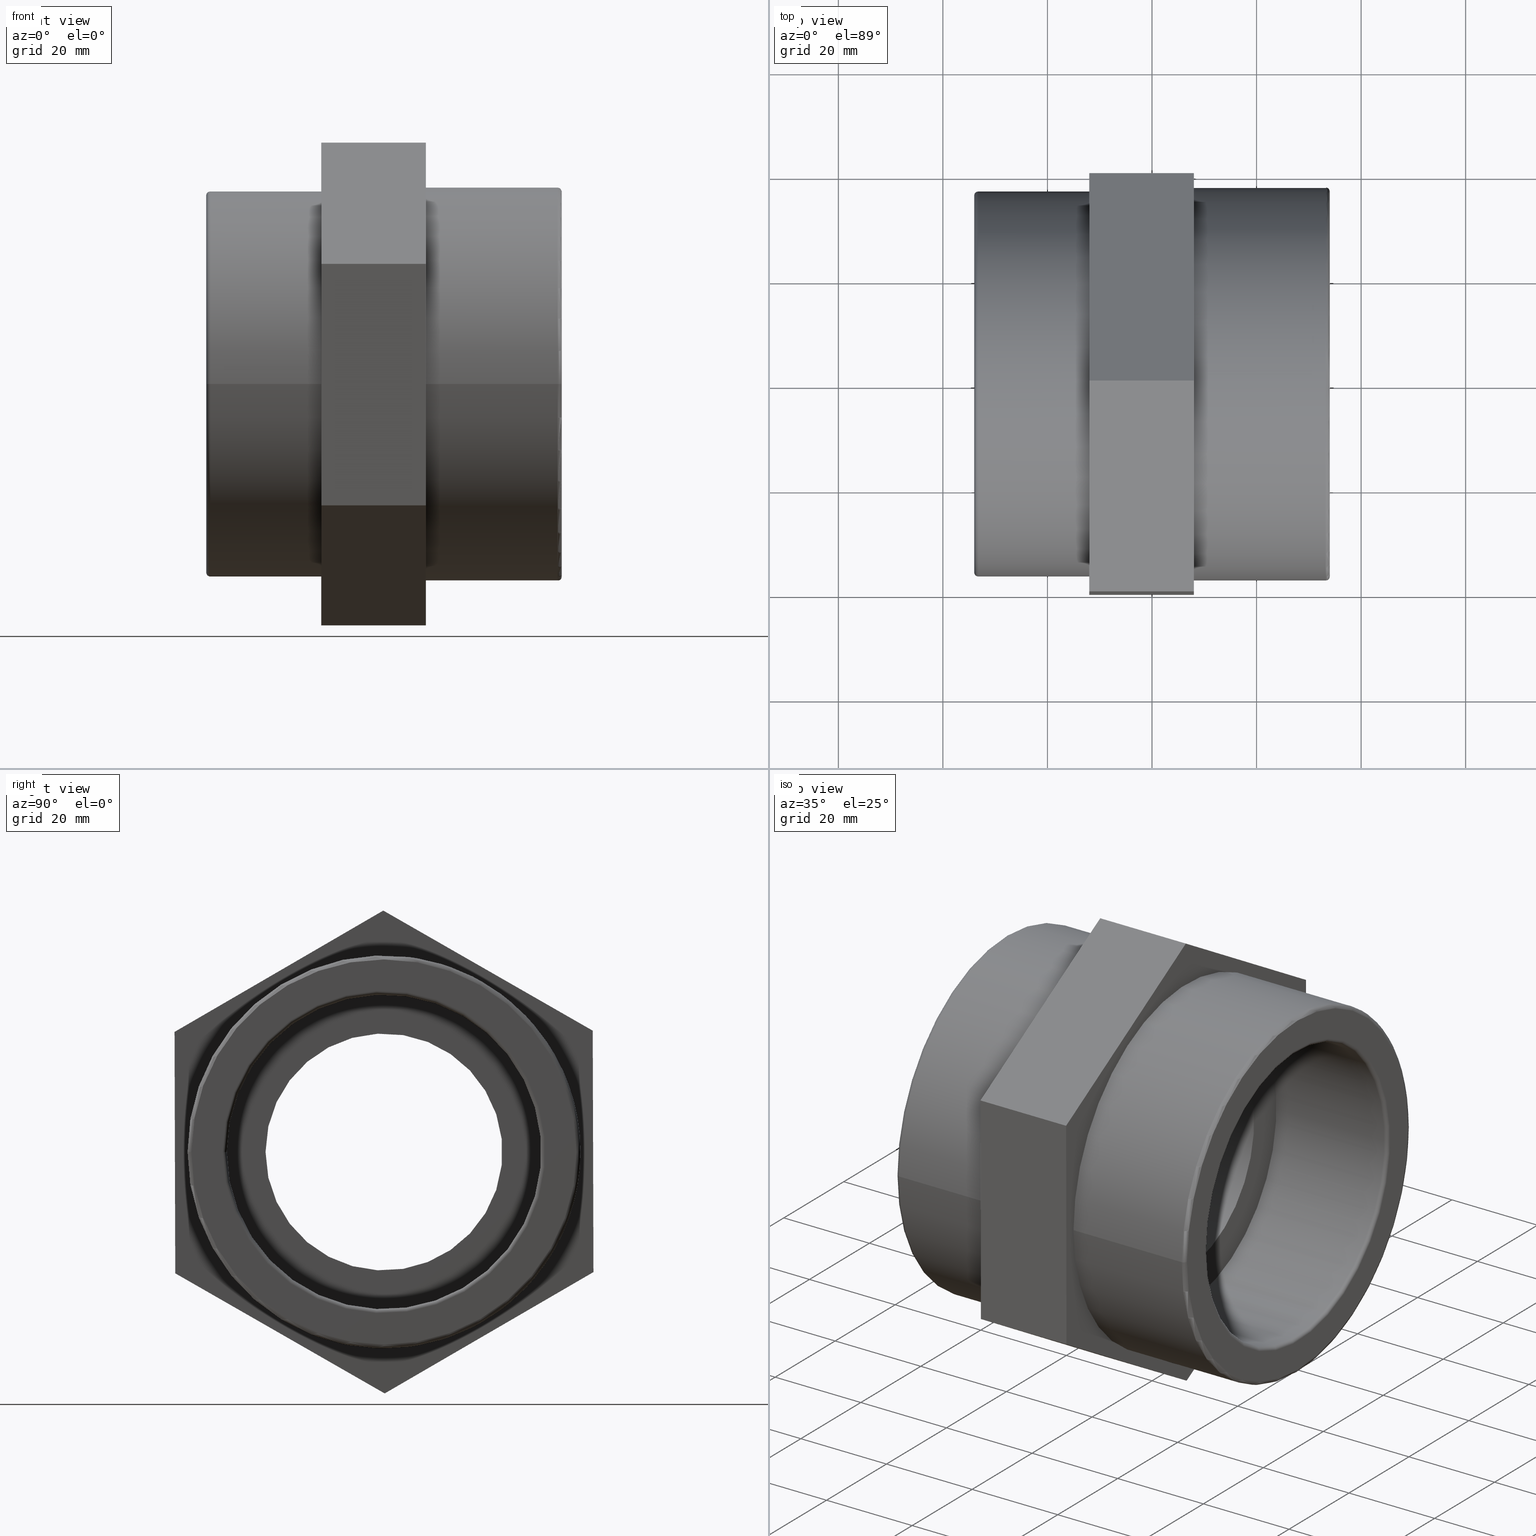
[diagram: canonical four-view strip — front | top / right | iso, engineering-drawing reading convention]
A machine part, canonical four-view strip (front | top / right | iso — engineering-drawing reading convention). The complete STEP part file that produces these views, byte-faithful:
ISO-10303-21;
HEADER;
/* Generated by software containing ST-Developer
 * from STEP Tools, Inc. (www.steptools.com) 
 */

FILE_DESCRIPTION(
/* description */ ('PLASSON THREADED REDUCER PVC 2.1/2"-2"F'),
/* implementation_level */ '2;1');

FILE_NAME(
/* name */ 
'C:\\Dropbox\\KIMPROJECTS-Inventor\\99-16-3568-Processing\\PVC Catalog
 2017\\050201\\050201025020.ipt.stp',
/* time_stamp */ '2017-12-07T15:53:42+02:00',
/* author */ ('KIM'),
/* organization */ (''),
/* preprocessor_version */ 'ST-DEVELOPER v15.6',
/* originating_system */ 'Autodesk Inventor 2015',
/* authorisation */ '');

FILE_SCHEMA (('AUTOMOTIVE_DESIGN { 1 0 10303 214 3 1 1 }'));
ENDSEC;

DATA;
#10=MECHANICAL_DESIGN_GEOMETRIC_PRESENTATION_REPRESENTATION('',(#13),#511);
#11=SHAPE_REPRESENTATION_RELATIONSHIP('SRR','None',#520,#12);
#12=ADVANCED_BREP_SHAPE_REPRESENTATION($,(#14),#510);
#13=STYLED_ITEM('',(#529),#14);
#14=MANIFOLD_SOLID_BREP('Solid1',#301);
#15=LINE('',#466,#33);
#16=LINE('',#468,#34);
#17=LINE('',#470,#35);
#18=LINE('',#471,#36);
#19=LINE('',#474,#37);
#20=LINE('',#476,#38);
#21=LINE('',#477,#39);
#22=LINE('',#480,#40);
#23=LINE('',#482,#41);
#24=LINE('',#483,#42);
#25=LINE('',#487,#43);
#26=LINE('',#489,#44);
#27=LINE('',#491,#45);
#28=LINE('',#492,#46);
#29=LINE('',#494,#47);
#30=LINE('',#495,#48);
#31=LINE('',#497,#49);
#32=LINE('',#498,#50);
#33=VECTOR('',#386,46.18802153517);
#34=VECTOR('',#387,20.);
#35=VECTOR('',#388,46.18802153517);
#36=VECTOR('',#389,20.);
#37=VECTOR('',#392,46.18802153517);
#38=VECTOR('',#393,20.);
#39=VECTOR('',#394,46.18802153517);
#40=VECTOR('',#397,46.1880215351701);
#41=VECTOR('',#398,20.);
#42=VECTOR('',#399,46.18802153517);
#43=VECTOR('',#402,46.1880215351701);
#44=VECTOR('',#403,20.);
#45=VECTOR('',#404,46.1880215351701);
#46=VECTOR('',#405,20.);
#47=VECTOR('',#408,46.18802153517);
#48=VECTOR('',#409,46.18802153517);
#49=VECTOR('',#412,46.1880215351701);
#50=VECTOR('',#413,46.1880215351701);
#51=CYLINDRICAL_SURFACE('',#308,30.0736);
#52=CYLINDRICAL_SURFACE('',#312,37.592);
#53=CYLINDRICAL_SURFACE('',#319,28.328);
#54=CYLINDRICAL_SURFACE('',#323,36.8264);
#55=CYLINDRICAL_SURFACE('',#333,22.6624);
#56=PLANE('',#306);
#57=PLANE('',#317);
#58=PLANE('',#325);
#59=PLANE('',#326);
#60=PLANE('',#327);
#61=PLANE('',#328);
#62=PLANE('',#329);
#63=PLANE('',#330);
#64=PLANE('',#331);
#65=PLANE('',#335);
#66=PLANE('',#336);
#67=PLANE('',#337);
#68=FACE_BOUND('',#105,.T.);
#69=FACE_BOUND('',#107,.T.);
#70=FACE_BOUND('',#109,.T.);
#71=FACE_BOUND('',#111,.T.);
#72=FACE_BOUND('',#113,.T.);
#73=FACE_BOUND('',#115,.T.);
#74=FACE_BOUND('',#117,.T.);
#75=FACE_BOUND('',#119,.T.);
#76=FACE_BOUND('',#121,.T.);
#77=FACE_BOUND('',#123,.T.);
#78=FACE_BOUND('',#131,.T.);
#79=FACE_BOUND('',#133,.T.);
#80=FACE_BOUND('',#135,.T.);
#81=FACE_BOUND('',#137,.T.);
#82=FACE_BOUND('',#139,.T.);
#83=FACE_OUTER_BOUND('',#104,.T.);
#84=FACE_OUTER_BOUND('',#106,.T.);
#85=FACE_OUTER_BOUND('',#108,.T.);
#86=FACE_OUTER_BOUND('',#110,.T.);
#87=FACE_OUTER_BOUND('',#112,.T.);
#88=FACE_OUTER_BOUND('',#114,.T.);
#89=FACE_OUTER_BOUND('',#116,.T.);
#90=FACE_OUTER_BOUND('',#118,.T.);
#91=FACE_OUTER_BOUND('',#120,.T.);
#92=FACE_OUTER_BOUND('',#122,.T.);
#93=FACE_OUTER_BOUND('',#124,.T.);
#94=FACE_OUTER_BOUND('',#125,.T.);
#95=FACE_OUTER_BOUND('',#126,.T.);
#96=FACE_OUTER_BOUND('',#127,.T.);
#97=FACE_OUTER_BOUND('',#128,.T.);
#98=FACE_OUTER_BOUND('',#129,.T.);
#99=FACE_OUTER_BOUND('',#130,.T.);
#100=FACE_OUTER_BOUND('',#132,.T.);
#101=FACE_OUTER_BOUND('',#134,.T.);
#102=FACE_OUTER_BOUND('',#136,.T.);
#103=FACE_OUTER_BOUND('',#138,.T.);
#104=EDGE_LOOP('',(#212));
#105=EDGE_LOOP('',(#213));
#106=EDGE_LOOP('',(#214));
#107=EDGE_LOOP('',(#215));
#108=EDGE_LOOP('',(#216));
#109=EDGE_LOOP('',(#217));
#110=EDGE_LOOP('',(#218));
#111=EDGE_LOOP('',(#219));
#112=EDGE_LOOP('',(#220));
#113=EDGE_LOOP('',(#221));
#114=EDGE_LOOP('',(#222));
#115=EDGE_LOOP('',(#223));
#116=EDGE_LOOP('',(#224));
#117=EDGE_LOOP('',(#225));
#118=EDGE_LOOP('',(#226));
#119=EDGE_LOOP('',(#227));
#120=EDGE_LOOP('',(#228));
#121=EDGE_LOOP('',(#229));
#122=EDGE_LOOP('',(#230));
#123=EDGE_LOOP('',(#231));
#124=EDGE_LOOP('',(#232,#233,#234,#235));
#125=EDGE_LOOP('',(#236,#237,#238,#239));
#126=EDGE_LOOP('',(#240,#241,#242,#243));
#127=EDGE_LOOP('',(#244,#245,#246,#247));
#128=EDGE_LOOP('',(#248,#249,#250,#251));
#129=EDGE_LOOP('',(#252,#253,#254,#255));
#130=EDGE_LOOP('',(#256));
#131=EDGE_LOOP('',(#257));
#132=EDGE_LOOP('',(#258));
#133=EDGE_LOOP('',(#259));
#134=EDGE_LOOP('',(#260));
#135=EDGE_LOOP('',(#261));
#136=EDGE_LOOP('',(#262,#263,#264,#265,#266,#267));
#137=EDGE_LOOP('',(#268));
#138=EDGE_LOOP('',(#269,#270,#271,#272,#273,#274));
#139=EDGE_LOOP('',(#275));
#140=CIRCLE('',#304,30.0736);
#141=CIRCLE('',#305,30.82544);
#142=CIRCLE('',#307,36.84016);
#143=CIRCLE('',#309,30.0736);
#144=CIRCLE('',#311,37.592);
#145=CIRCLE('',#313,37.592);
#146=CIRCLE('',#315,29.07984);
#147=CIRCLE('',#316,28.328);
#148=CIRCLE('',#318,36.07456);
#149=CIRCLE('',#320,28.328);
#150=CIRCLE('',#322,36.8264);
#151=CIRCLE('',#324,36.8264);
#152=CIRCLE('',#332,22.6624);
#153=CIRCLE('',#334,22.6624);
#154=VERTEX_POINT('',#430);
#155=VERTEX_POINT('',#432);
#156=VERTEX_POINT('',#435);
#157=VERTEX_POINT('',#438);
#158=VERTEX_POINT('',#441);
#159=VERTEX_POINT('',#444);
#160=VERTEX_POINT('',#447);
#161=VERTEX_POINT('',#449);
#162=VERTEX_POINT('',#452);
#163=VERTEX_POINT('',#455);
#164=VERTEX_POINT('',#458);
#165=VERTEX_POINT('',#461);
#166=VERTEX_POINT('',#464);
#167=VERTEX_POINT('',#465);
#168=VERTEX_POINT('',#467);
#169=VERTEX_POINT('',#469);
#170=VERTEX_POINT('',#473);
#171=VERTEX_POINT('',#475);
#172=VERTEX_POINT('',#479);
#173=VERTEX_POINT('',#481);
#174=VERTEX_POINT('',#485);
#175=VERTEX_POINT('',#486);
#176=VERTEX_POINT('',#488);
#177=VERTEX_POINT('',#490);
#178=VERTEX_POINT('',#500);
#179=VERTEX_POINT('',#503);
#180=EDGE_CURVE('',#154,#154,#140,.T.);
#181=EDGE_CURVE('',#155,#155,#141,.T.);
#182=EDGE_CURVE('',#156,#156,#142,.T.);
#183=EDGE_CURVE('',#157,#157,#143,.T.);
#184=EDGE_CURVE('',#158,#158,#144,.T.);
#185=EDGE_CURVE('',#159,#159,#145,.T.);
#186=EDGE_CURVE('',#160,#160,#146,.T.);
#187=EDGE_CURVE('',#161,#161,#147,.T.);
#188=EDGE_CURVE('',#162,#162,#148,.T.);
#189=EDGE_CURVE('',#163,#163,#149,.T.);
#190=EDGE_CURVE('',#164,#164,#150,.T.);
#191=EDGE_CURVE('',#165,#165,#151,.T.);
#192=EDGE_CURVE('',#166,#167,#15,.T.);
#193=EDGE_CURVE('',#168,#167,#16,.T.);
#194=EDGE_CURVE('',#168,#169,#17,.T.);
#195=EDGE_CURVE('',#169,#166,#18,.T.);
#196=EDGE_CURVE('',#167,#170,#19,.T.);
#197=EDGE_CURVE('',#171,#170,#20,.T.);
#198=EDGE_CURVE('',#171,#168,#21,.T.);
#199=EDGE_CURVE('',#170,#172,#22,.T.);
#200=EDGE_CURVE('',#173,#172,#23,.T.);
#201=EDGE_CURVE('',#173,#171,#24,.T.);
#202=EDGE_CURVE('',#174,#175,#25,.T.);
#203=EDGE_CURVE('',#176,#175,#26,.T.);
#204=EDGE_CURVE('',#176,#177,#27,.T.);
#205=EDGE_CURVE('',#177,#174,#28,.T.);
#206=EDGE_CURVE('',#175,#166,#29,.T.);
#207=EDGE_CURVE('',#169,#176,#30,.T.);
#208=EDGE_CURVE('',#172,#174,#31,.T.);
#209=EDGE_CURVE('',#177,#173,#32,.T.);
#210=EDGE_CURVE('',#178,#178,#152,.T.);
#211=EDGE_CURVE('',#179,#179,#153,.T.);
#212=ORIENTED_EDGE('',*,*,#180,.T.);
#213=ORIENTED_EDGE('',*,*,#181,.T.);
#214=ORIENTED_EDGE('',*,*,#182,.F.);
#215=ORIENTED_EDGE('',*,*,#181,.F.);
#216=ORIENTED_EDGE('',*,*,#183,.T.);
#217=ORIENTED_EDGE('',*,*,#180,.F.);
#218=ORIENTED_EDGE('',*,*,#182,.T.);
#219=ORIENTED_EDGE('',*,*,#184,.T.);
#220=ORIENTED_EDGE('',*,*,#185,.F.);
#221=ORIENTED_EDGE('',*,*,#184,.F.);
#222=ORIENTED_EDGE('',*,*,#186,.T.);
#223=ORIENTED_EDGE('',*,*,#187,.T.);
#224=ORIENTED_EDGE('',*,*,#188,.F.);
#225=ORIENTED_EDGE('',*,*,#186,.F.);
#226=ORIENTED_EDGE('',*,*,#189,.F.);
#227=ORIENTED_EDGE('',*,*,#187,.F.);
#228=ORIENTED_EDGE('',*,*,#190,.T.);
#229=ORIENTED_EDGE('',*,*,#188,.T.);
#230=ORIENTED_EDGE('',*,*,#191,.T.);
#231=ORIENTED_EDGE('',*,*,#190,.F.);
#232=ORIENTED_EDGE('',*,*,#192,.T.);
#233=ORIENTED_EDGE('',*,*,#193,.F.);
#234=ORIENTED_EDGE('',*,*,#194,.T.);
#235=ORIENTED_EDGE('',*,*,#195,.T.);
#236=ORIENTED_EDGE('',*,*,#196,.T.);
#237=ORIENTED_EDGE('',*,*,#197,.F.);
#238=ORIENTED_EDGE('',*,*,#198,.T.);
#239=ORIENTED_EDGE('',*,*,#193,.T.);
#240=ORIENTED_EDGE('',*,*,#199,.T.);
#241=ORIENTED_EDGE('',*,*,#200,.F.);
#242=ORIENTED_EDGE('',*,*,#201,.T.);
#243=ORIENTED_EDGE('',*,*,#197,.T.);
#244=ORIENTED_EDGE('',*,*,#202,.T.);
#245=ORIENTED_EDGE('',*,*,#203,.F.);
#246=ORIENTED_EDGE('',*,*,#204,.T.);
#247=ORIENTED_EDGE('',*,*,#205,.T.);
#248=ORIENTED_EDGE('',*,*,#206,.T.);
#249=ORIENTED_EDGE('',*,*,#195,.F.);
#250=ORIENTED_EDGE('',*,*,#207,.T.);
#251=ORIENTED_EDGE('',*,*,#203,.T.);
#252=ORIENTED_EDGE('',*,*,#208,.T.);
#253=ORIENTED_EDGE('',*,*,#205,.F.);
#254=ORIENTED_EDGE('',*,*,#209,.T.);
#255=ORIENTED_EDGE('',*,*,#200,.T.);
#256=ORIENTED_EDGE('',*,*,#189,.T.);
#257=ORIENTED_EDGE('',*,*,#210,.F.);
#258=ORIENTED_EDGE('',*,*,#211,.F.);
#259=ORIENTED_EDGE('',*,*,#210,.T.);
#260=ORIENTED_EDGE('',*,*,#183,.F.);
#261=ORIENTED_EDGE('',*,*,#211,.T.);
#262=ORIENTED_EDGE('',*,*,#207,.F.);
#263=ORIENTED_EDGE('',*,*,#194,.F.);
#264=ORIENTED_EDGE('',*,*,#198,.F.);
#265=ORIENTED_EDGE('',*,*,#201,.F.);
#266=ORIENTED_EDGE('',*,*,#209,.F.);
#267=ORIENTED_EDGE('',*,*,#204,.F.);
#268=ORIENTED_EDGE('',*,*,#185,.T.);
#269=ORIENTED_EDGE('',*,*,#206,.F.);
#270=ORIENTED_EDGE('',*,*,#202,.F.);
#271=ORIENTED_EDGE('',*,*,#208,.F.);
#272=ORIENTED_EDGE('',*,*,#199,.F.);
#273=ORIENTED_EDGE('',*,*,#196,.F.);
#274=ORIENTED_EDGE('',*,*,#192,.F.);
#275=ORIENTED_EDGE('',*,*,#191,.F.);
#276=TOROIDAL_SURFACE('',#303,30.82544,0.75184);
#277=TOROIDAL_SURFACE('',#310,36.84016,0.75184);
#278=TOROIDAL_SURFACE('',#314,29.07984,0.75184);
#279=TOROIDAL_SURFACE('',#321,36.07456,0.75184);
#280=ADVANCED_FACE('',(#83,#68),#276,.T.);
#281=ADVANCED_FACE('',(#84,#69),#56,.T.);
#282=ADVANCED_FACE('',(#85,#70),#51,.F.);
#283=ADVANCED_FACE('',(#86,#71),#277,.T.);
#284=ADVANCED_FACE('',(#87,#72),#52,.T.);
#285=ADVANCED_FACE('',(#88,#73),#278,.T.);
#286=ADVANCED_FACE('',(#89,#74),#57,.T.);
#287=ADVANCED_FACE('',(#90,#75),#53,.F.);
#288=ADVANCED_FACE('',(#91,#76),#279,.T.);
#289=ADVANCED_FACE('',(#92,#77),#54,.T.);
#290=ADVANCED_FACE('',(#93),#58,.T.);
#291=ADVANCED_FACE('',(#94),#59,.T.);
#292=ADVANCED_FACE('',(#95),#60,.T.);
#293=ADVANCED_FACE('',(#96),#61,.T.);
#294=ADVANCED_FACE('',(#97),#62,.T.);
#295=ADVANCED_FACE('',(#98),#63,.T.);
#296=ADVANCED_FACE('',(#99,#78),#64,.T.);
#297=ADVANCED_FACE('',(#100,#79),#55,.F.);
#298=ADVANCED_FACE('',(#101,#80),#65,.T.);
#299=ADVANCED_FACE('',(#102,#81),#66,.T.);
#300=ADVANCED_FACE('',(#103,#82),#67,.T.);
#301=CLOSED_SHELL('',(#280,#281,#282,#283,#284,#285,#286,#287,#288,#289,
#290,#291,#292,#293,#294,#295,#296,#297,#298,#299,#300));
#302=AXIS2_PLACEMENT_3D('placement',#428,#338,#339);
#303=AXIS2_PLACEMENT_3D('',#429,#340,#341);
#304=AXIS2_PLACEMENT_3D('',#431,#342,#343);
#305=AXIS2_PLACEMENT_3D('',#433,#344,#345);
#306=AXIS2_PLACEMENT_3D('',#434,#346,#347);
#307=AXIS2_PLACEMENT_3D('',#436,#348,#349);
#308=AXIS2_PLACEMENT_3D('',#437,#350,#351);
#309=AXIS2_PLACEMENT_3D('',#439,#352,#353);
#310=AXIS2_PLACEMENT_3D('',#440,#354,#355);
#311=AXIS2_PLACEMENT_3D('',#442,#356,#357);
#312=AXIS2_PLACEMENT_3D('',#443,#358,#359);
#313=AXIS2_PLACEMENT_3D('',#445,#360,#361);
#314=AXIS2_PLACEMENT_3D('',#446,#362,#363);
#315=AXIS2_PLACEMENT_3D('',#448,#364,#365);
#316=AXIS2_PLACEMENT_3D('',#450,#366,#367);
#317=AXIS2_PLACEMENT_3D('',#451,#368,#369);
#318=AXIS2_PLACEMENT_3D('',#453,#370,#371);
#319=AXIS2_PLACEMENT_3D('',#454,#372,#373);
#320=AXIS2_PLACEMENT_3D('',#456,#374,#375);
#321=AXIS2_PLACEMENT_3D('',#457,#376,#377);
#322=AXIS2_PLACEMENT_3D('',#459,#378,#379);
#323=AXIS2_PLACEMENT_3D('',#460,#380,#381);
#324=AXIS2_PLACEMENT_3D('',#462,#382,#383);
#325=AXIS2_PLACEMENT_3D('',#463,#384,#385);
#326=AXIS2_PLACEMENT_3D('',#472,#390,#391);
#327=AXIS2_PLACEMENT_3D('',#478,#395,#396);
#328=AXIS2_PLACEMENT_3D('',#484,#400,#401);
#329=AXIS2_PLACEMENT_3D('',#493,#406,#407);
#330=AXIS2_PLACEMENT_3D('',#496,#410,#411);
#331=AXIS2_PLACEMENT_3D('',#499,#414,#415);
#332=AXIS2_PLACEMENT_3D('',#501,#416,#417);
#333=AXIS2_PLACEMENT_3D('',#502,#418,#419);
#334=AXIS2_PLACEMENT_3D('',#504,#420,#421);
#335=AXIS2_PLACEMENT_3D('',#505,#422,#423);
#336=AXIS2_PLACEMENT_3D('',#506,#424,#425);
#337=AXIS2_PLACEMENT_3D('',#507,#426,#427);
#338=DIRECTION('axis',(0.,0.,1.));
#339=DIRECTION('refdir',(1.,0.,0.));
#340=DIRECTION('center_axis',(-1.,-1.83697019872103E-16,0.));
#341=DIRECTION('ref_axis',(0.,0.,1.));
#342=DIRECTION('center_axis',(-1.,-1.83697019872103E-16,0.));
#343=DIRECTION('ref_axis',(-1.84584323896234E-16,1.,6.12323399573677E-17));
#344=DIRECTION('center_axis',(1.,1.83697019872103E-16,0.));
#345=DIRECTION('ref_axis',(-1.83697019872103E-16,1.,6.12323399573676E-17));
#346=DIRECTION('center_axis',(1.,1.83697019872103E-16,0.));
#347=DIRECTION('ref_axis',(0.,0.,-1.));
#348=DIRECTION('center_axis',(-1.,-1.83697019872103E-16,0.));
#349=DIRECTION('ref_axis',(-1.83697019872103E-16,1.,6.12323399573677E-17));
#350=DIRECTION('center_axis',(-1.,-1.83697019872103E-16,0.));
#351=DIRECTION('ref_axis',(1.5676687724162E-16,-1.,0.));
#352=DIRECTION('center_axis',(-1.,-1.83697019872103E-16,0.));
#353=DIRECTION('ref_axis',(0.,0.,1.));
#354=DIRECTION('center_axis',(-1.,-1.83697019872103E-16,0.));
#355=DIRECTION('ref_axis',(0.,0.,1.));
#356=DIRECTION('center_axis',(1.,1.83697019872103E-16,0.));
#357=DIRECTION('ref_axis',(-1.84584323896234E-16,1.,6.12323399573676E-17));
#358=DIRECTION('center_axis',(-1.,-1.83697019872103E-16,0.));
#359=DIRECTION('ref_axis',(1.56766877241621E-16,-1.,0.));
#360=DIRECTION('center_axis',(-1.,-1.83697019872103E-16,0.));
#361=DIRECTION('ref_axis',(0.,0.,1.));
#362=DIRECTION('center_axis',(-1.,-1.83697019872103E-16,0.));
#363=DIRECTION('ref_axis',(0.,0.,1.));
#364=DIRECTION('center_axis',(-1.,-1.83697019872103E-16,0.));
#365=DIRECTION('ref_axis',(-1.83697019872103E-16,1.,6.12323399573677E-17));
#366=DIRECTION('center_axis',(1.,1.83697019872103E-16,0.));
#367=DIRECTION('ref_axis',(-1.81261701810624E-16,1.,6.12323399573677E-17));
#368=DIRECTION('center_axis',(-1.,-1.83697019872103E-16,0.));
#369=DIRECTION('ref_axis',(0.,0.,1.));
#370=DIRECTION('center_axis',(1.,1.83697019872103E-16,0.));
#371=DIRECTION('ref_axis',(-1.83697019872103E-16,1.,6.12323399573677E-17));
#372=DIRECTION('center_axis',(-1.,-1.83697019872103E-16,0.));
#373=DIRECTION('ref_axis',(1.5676687724162E-16,-1.,0.));
#374=DIRECTION('center_axis',(-1.,-1.83697019872103E-16,0.));
#375=DIRECTION('ref_axis',(0.,0.,1.));
#376=DIRECTION('center_axis',(-1.,-1.83697019872103E-16,0.));
#377=DIRECTION('ref_axis',(0.,0.,1.));
#378=DIRECTION('center_axis',(-1.,-1.83697019872103E-16,0.));
#379=DIRECTION('ref_axis',(-1.84653292904793E-16,1.,6.12323399573677E-17));
#380=DIRECTION('center_axis',(-1.,-1.83697019872103E-16,0.));
#381=DIRECTION('ref_axis',(1.5676687724162E-16,-1.,0.));
#382=DIRECTION('center_axis',(-1.,-1.83697019872103E-16,0.));
#383=DIRECTION('ref_axis',(0.,0.,1.));
#384=DIRECTION('center_axis',(1.48029086710997E-16,-0.999995609627469,-0.00296322894591867));
#385=DIRECTION('ref_axis',(0.,-0.00296322894591867,0.999995609627469));
#386=DIRECTION('',(-5.44336326564012E-19,0.00296322894591867,-0.999995609627469));
#387=DIRECTION('',(-1.,-1.48029736616687E-16,0.));
#388=DIRECTION('',(5.44336326564012E-19,-0.00296322894591867,0.999995609627469));
#389=DIRECTION('',(-1.,-1.48029736616687E-16,0.));
#390=DIRECTION('center_axis',(7.36346647758846E-17,-0.49743157326934,-0.867503216083254));
#391=DIRECTION('ref_axis',(1.77635683940025E-16,-0.867503216083254,0.49743157326934));
#392=DIRECTION('',(-1.59357755523959E-16,0.867503216083254,-0.49743157326934));
#393=DIRECTION('',(-1.,-1.48029736616687E-16,0.));
#394=DIRECTION('',(1.59357755523959E-16,-0.867503216083254,0.49743157326934));
#395=DIRECTION('center_axis',(-7.43944219351129E-17,0.502564036358129,-0.864539987137336));
#396=DIRECTION('ref_axis',(1.77635683940025E-16,-0.864539987137336,-0.502564036358129));
#397=DIRECTION('',(-1.58813419197395E-16,0.864539987137336,0.502564036358129));
#398=DIRECTION('',(-1.,-1.48029736616687E-16,0.));
#399=DIRECTION('',(1.58813419197395E-16,-0.864539987137336,-0.502564036358129));
#400=DIRECTION('center_axis',(-7.36346647758845E-17,0.49743157326934,0.867503216083255));
#401=DIRECTION('ref_axis',(-1.77635683940025E-16,0.867503216083254,-0.49743157326934));
#402=DIRECTION('',(1.59357755523959E-16,-0.867503216083254,0.497431573269339));
#403=DIRECTION('',(-1.,-1.48029736616687E-16,0.));
#404=DIRECTION('',(-1.59357755523959E-16,0.867503216083254,-0.497431573269339));
#405=DIRECTION('',(-1.,-1.48029736616687E-16,0.));
#406=DIRECTION('center_axis',(7.4394421935113E-17,-0.50256403635813,0.864539987137335));
#407=DIRECTION('ref_axis',(-1.77635683940025E-16,0.864539987137335,0.50256403635813));
#408=DIRECTION('',(1.58813419197395E-16,-0.864539987137336,-0.50256403635813));
#409=DIRECTION('',(-1.58813419197395E-16,0.864539987137336,0.50256403635813));
#410=DIRECTION('center_axis',(-1.48029086710997E-16,0.999995609627469,0.00296322894591799));
#411=DIRECTION('ref_axis',(0.,0.00296322894591796,-0.999995609627469));
#412=DIRECTION('',(5.44336326563888E-19,-0.00296322894591799,0.999995609627469));
#413=DIRECTION('',(-5.44336326563888E-19,0.00296322894591799,-0.999995609627469));
#414=DIRECTION('center_axis',(-1.,-1.83697019872103E-16,0.));
#415=DIRECTION('ref_axis',(0.,0.,1.));
#416=DIRECTION('center_axis',(-1.,-1.83697019872103E-16,0.));
#417=DIRECTION('ref_axis',(0.,0.,1.));
#418=DIRECTION('center_axis',(-1.,-1.83697019872103E-16,0.));
#419=DIRECTION('ref_axis',(1.56766877241621E-16,-1.,0.));
#420=DIRECTION('center_axis',(-1.,-1.83697019872103E-16,0.));
#421=DIRECTION('ref_axis',(0.,0.,1.));
#422=DIRECTION('center_axis',(1.,1.83697019872103E-16,0.));
#423=DIRECTION('ref_axis',(0.,0.,-1.));
#424=DIRECTION('center_axis',(1.,1.83697019872103E-16,0.));
#425=DIRECTION('ref_axis',(0.,0.,-1.));
#426=DIRECTION('center_axis',(-1.,-1.83697019872103E-16,0.));
#427=DIRECTION('ref_axis',(0.,0.,1.));
#428=CARTESIAN_POINT('',(0.,0.,0.));
#429=CARTESIAN_POINT('Origin',(33.24816,1.23532865838824E-14,0.));
#430=CARTESIAN_POINT('',(33.24816,-30.0736,1.84147689894189E-15));
#431=CARTESIAN_POINT('Origin',(33.24816,1.23532865838824E-14,0.));
#432=CARTESIAN_POINT('',(34.,-30.82544,-5.66254146424632E-15));
#433=CARTESIAN_POINT('Origin',(34.,1.2491397351303E-14,0.));
#434=CARTESIAN_POINT('Origin',(34.,-37.592,0.));
#435=CARTESIAN_POINT('',(34.,-36.84016,2.25580920120382E-15));
#436=CARTESIAN_POINT('Origin',(34.,1.2491397351303E-14,0.));
#437=CARTESIAN_POINT('Origin',(21.,1.01033360929657E-14,0.));
#438=CARTESIAN_POINT('',(8.00000000000002,-30.0736,0.));
#439=CARTESIAN_POINT('Origin',(8.00000000000002,7.71527483462833E-15,0.));
#440=CARTESIAN_POINT('Origin',(33.24816,1.23532865838824E-14,0.));
#441=CARTESIAN_POINT('',(33.24816,-37.592,-6.9055383710321E-15));
#442=CARTESIAN_POINT('Origin',(33.24816,1.23532865838824E-14,0.));
#443=CARTESIAN_POINT('Origin',(21.,1.01033360929657E-14,0.));
#444=CARTESIAN_POINT('',(8.00000000000002,-37.592,0.));
#445=CARTESIAN_POINT('Origin',(8.00000000000001,7.71527483462833E-15,0.));
#446=CARTESIAN_POINT('Origin',(-33.24816,1.38110767420641E-16,0.));
#447=CARTESIAN_POINT('',(-34.,-29.07984,1.78062664878586E-15));
#448=CARTESIAN_POINT('Origin',(-34.,-8.47409175530384E-31,0.));
#449=CARTESIAN_POINT('',(-33.24816,-28.328,-5.20376917893693E-15));
#450=CARTESIAN_POINT('Origin',(-33.24816,1.38110767420641E-16,0.));
#451=CARTESIAN_POINT('Origin',(-34.,-28.328,0.));
#452=CARTESIAN_POINT('',(-34.,-36.07456,-6.62678916519737E-15));
#453=CARTESIAN_POINT('Origin',(-34.,-3.54371109767251E-31,0.));
#454=CARTESIAN_POINT('Origin',(-19.5,2.66360678814549E-15,0.));
#455=CARTESIAN_POINT('',(-5.,-28.328,0.));
#456=CARTESIAN_POINT('Origin',(-5.,5.32721357629099E-15,0.));
#457=CARTESIAN_POINT('Origin',(-33.24816,1.38110767420642E-16,0.));
#458=CARTESIAN_POINT('',(-33.24816,-36.8264,2.25496664420601E-15));
#459=CARTESIAN_POINT('Origin',(-33.24816,1.38110767420642E-16,0.));
#460=CARTESIAN_POINT('Origin',(-23.,2.02066721859313E-15,0.));
#461=CARTESIAN_POINT('',(-12.,-36.8264,0.));
#462=CARTESIAN_POINT('Origin',(-12.,4.04133443718627E-15,0.));
#463=CARTESIAN_POINT('Origin',(8.00000000000002,-39.9313915439149,-23.2124385341113));
#464=CARTESIAN_POINT('',(-12.,-40.0682572262826,22.9753802184378));
#465=CARTESIAN_POINT('',(-12.,-39.9313915439149,-23.2124385341113));
#466=CARTESIAN_POINT('',(-12.,-39.9656079645068,-11.665483845974));
#467=CARTESIAN_POINT('',(8.00000000000002,-39.9313915439149,-23.2124385341113));
#468=CARTESIAN_POINT('',(8.00000000000002,-39.9313915439149,-23.2124385341113));
#469=CARTESIAN_POINT('',(8.00000000000002,-40.0682572262826,22.9753802184378));
#470=CARTESIAN_POINT('',(8.00000000000002,-39.9313915439149,-23.2124385341113));
#471=CARTESIAN_POINT('',(8.00000000000002,-40.0682572262826,22.9753802184378));
#472=CARTESIAN_POINT('Origin',(8.00000000000001,0.13686568236769,-46.187818752549));
#473=CARTESIAN_POINT('',(-12.,0.136865682367687,-46.187818752549));
#474=CARTESIAN_POINT('',(-12.,-9.88019862420296,-40.4439736979396));
#475=CARTESIAN_POINT('',(8.00000000000001,0.13686568236769,-46.187818752549));
#476=CARTESIAN_POINT('',(8.00000000000001,0.13686568236769,-46.187818752549));
#477=CARTESIAN_POINT('',(8.00000000000001,0.13686568236769,-46.187818752549));
#478=CARTESIAN_POINT('Origin',(8.00000000000001,40.0682572262826,-22.9753802184378));
#479=CARTESIAN_POINT('',(-12.,40.0682572262826,-22.9753802184378));
#480=CARTESIAN_POINT('',(-12.,30.0854093403039,-28.7784898519656));
#481=CARTESIAN_POINT('',(8.00000000000001,40.0682572262826,-22.9753802184378));
#482=CARTESIAN_POINT('',(8.00000000000001,40.0682572262826,-22.9753802184378));
#483=CARTESIAN_POINT('',(8.00000000000001,40.0682572262826,-22.9753802184378));
#484=CARTESIAN_POINT('Origin',(8.00000000000001,-0.136865682367748,46.187818752549));
#485=CARTESIAN_POINT('',(-12.,39.9313915439149,23.2124385341113));
#486=CARTESIAN_POINT('',(-12.,-0.136865682367751,46.187818752549));
#487=CARTESIAN_POINT('',(-12.,9.8801986242029,40.4439736979396));
#488=CARTESIAN_POINT('',(8.00000000000001,-0.136865682367748,46.187818752549));
#489=CARTESIAN_POINT('',(8.00000000000001,-0.136865682367748,46.187818752549));
#490=CARTESIAN_POINT('',(8.00000000000001,39.9313915439149,23.2124385341113));
#491=CARTESIAN_POINT('',(8.00000000000001,-0.136865682367748,46.187818752549));
#492=CARTESIAN_POINT('',(8.00000000000001,39.9313915439149,23.2124385341113));
#493=CARTESIAN_POINT('Origin',(8.00000000000002,-40.0682572262826,22.9753802184378));
#494=CARTESIAN_POINT('',(-12.,-30.0854093403039,28.7784898519656));
#495=CARTESIAN_POINT('',(8.00000000000002,-40.0682572262826,22.9753802184378));
#496=CARTESIAN_POINT('Origin',(8.00000000000001,39.9998243850987,0.118529157836718));
#497=CARTESIAN_POINT('',(-12.,39.9998243850987,0.118529157836719));
#498=CARTESIAN_POINT('',(8.00000000000001,39.9313915439149,23.2124385341113));
#499=CARTESIAN_POINT('Origin',(-5.,-22.6624,0.));
#500=CARTESIAN_POINT('',(-5.,-22.6624,0.));
#501=CARTESIAN_POINT('Origin',(-5.,5.32721357629099E-15,0.));
#502=CARTESIAN_POINT('Origin',(1.5,6.52124420545966E-15,0.));
#503=CARTESIAN_POINT('',(8.00000000000002,-22.6624,0.));
#504=CARTESIAN_POINT('Origin',(8.00000000000002,7.71527483462833E-15,0.));
#505=CARTESIAN_POINT('Origin',(8.00000000000002,-30.0736,0.));
#506=CARTESIAN_POINT('Origin',(8.00000000000002,-40.,0.));
#507=CARTESIAN_POINT('Origin',(-12.,-36.8264,0.));
#508=UNCERTAINTY_MEASURE_WITH_UNIT(LENGTH_MEASURE(0.01),#512,
'DISTANCE_ACCURACY_VALUE',
'Maximum model space distance between geometric entities at asserted c
onnectivities');
#509=UNCERTAINTY_MEASURE_WITH_UNIT(LENGTH_MEASURE(1.E-6),#512,
'DISTANCE_ACCURACY_VALUE',
'Maximum model space distance between geometric entities at asserted c
onnectivities');
#510=(
GEOMETRIC_REPRESENTATION_CONTEXT(3)
GLOBAL_UNCERTAINTY_ASSIGNED_CONTEXT((#508))
GLOBAL_UNIT_ASSIGNED_CONTEXT((#512,#515,#513))
REPRESENTATION_CONTEXT('','3D')
);
#511=(
GEOMETRIC_REPRESENTATION_CONTEXT(3)
GLOBAL_UNCERTAINTY_ASSIGNED_CONTEXT((#509))
GLOBAL_UNIT_ASSIGNED_CONTEXT((#512,#515,#513))
REPRESENTATION_CONTEXT('','3D')
);
#512=(
LENGTH_UNIT()
NAMED_UNIT(*)
SI_UNIT(.MILLI.,.METRE.)
);
#513=(
NAMED_UNIT(*)
SI_UNIT($,.STERADIAN.)
SOLID_ANGLE_UNIT()
);
#514=DIMENSIONAL_EXPONENTS(0.,0.,0.,0.,0.,0.,0.);
#515=(
CONVERSION_BASED_UNIT('degree',#517)
NAMED_UNIT(#514)
PLANE_ANGLE_UNIT()
);
#516=(
NAMED_UNIT(*)
PLANE_ANGLE_UNIT()
SI_UNIT($,.RADIAN.)
);
#517=PLANE_ANGLE_MEASURE_WITH_UNIT(PLANE_ANGLE_MEASURE(0.01745329252),#516);
#518=SHAPE_DEFINITION_REPRESENTATION(#519,#520);
#519=PRODUCT_DEFINITION_SHAPE('',$,#522);
#520=SHAPE_REPRESENTATION('',(#302),#510);
#521=PRODUCT_DEFINITION_CONTEXT('part definition',#526,'design');
#522=PRODUCT_DEFINITION('050201025020','050201025020',#523,#521);
#523=PRODUCT_DEFINITION_FORMATION('',$,#528);
#524=PRODUCT_RELATED_PRODUCT_CATEGORY('050201025020','050201025020',(#528));
#525=APPLICATION_PROTOCOL_DEFINITION('international standard',
'automotive_design',2009,#526);
#526=APPLICATION_CONTEXT(
'Core Data for Automotive Mechanical Design Process');
#527=PRODUCT_CONTEXT('part definition',#526,'mechanical');
#528=PRODUCT('050201025020','050201025020',$,(#527));
#529=PRESENTATION_STYLE_ASSIGNMENT((#530));
#530=SURFACE_STYLE_USAGE(.BOTH.,#531);
#531=SURFACE_SIDE_STYLE($,(#532));
#532=SURFACE_STYLE_FILL_AREA(#533);
#533=FILL_AREA_STYLE($,(#534));
#534=FILL_AREA_STYLE_COLOUR($,#535);
#535=COLOUR_RGB('',0.749019607843137,0.749019607843137,0.749019607843137);
ENDSEC;
END-ISO-10303-21;
